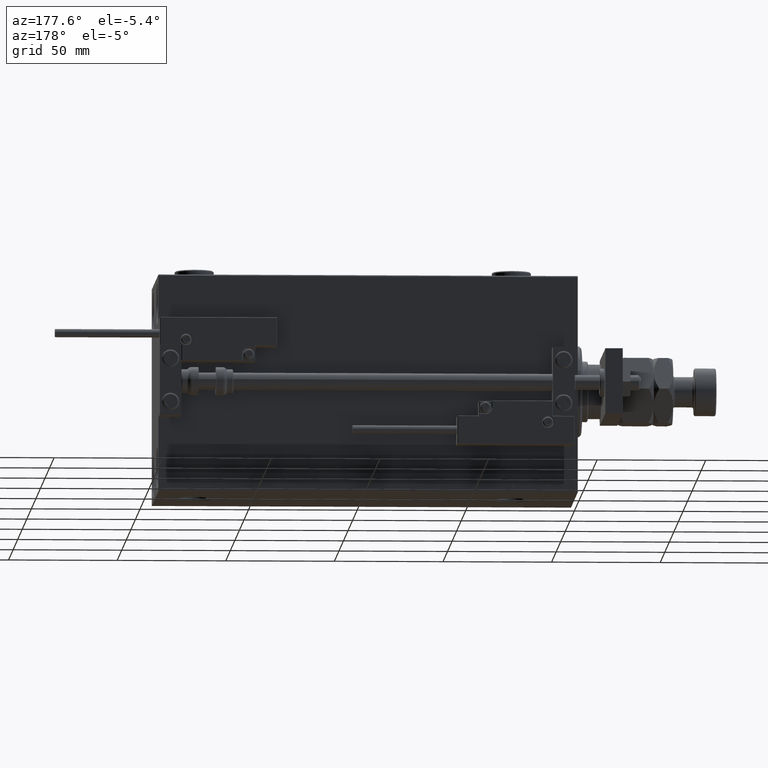
[diagram: clean part render]
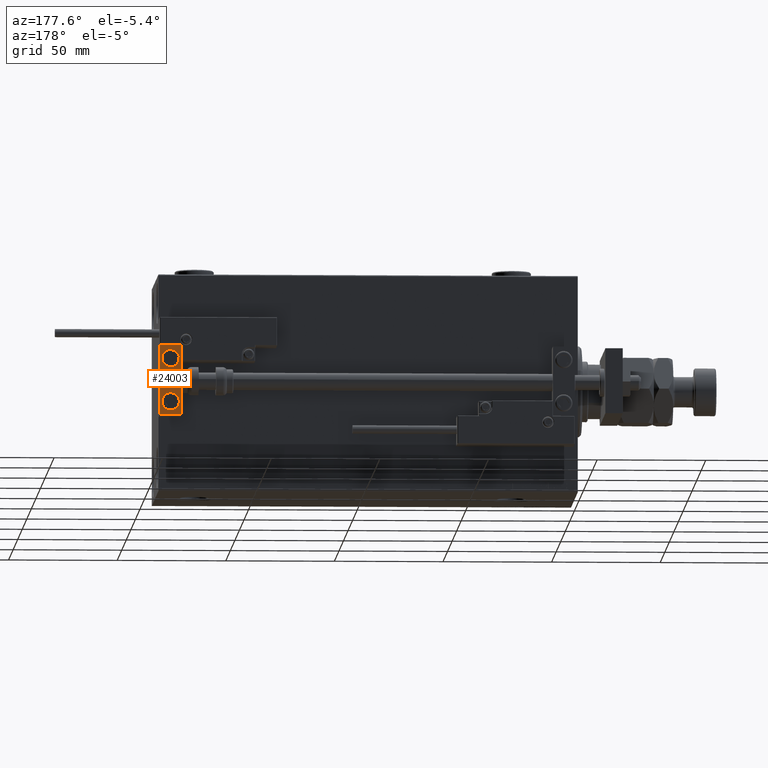
[diagram: same view with one face highlighted and labeled with its STEP entity id]
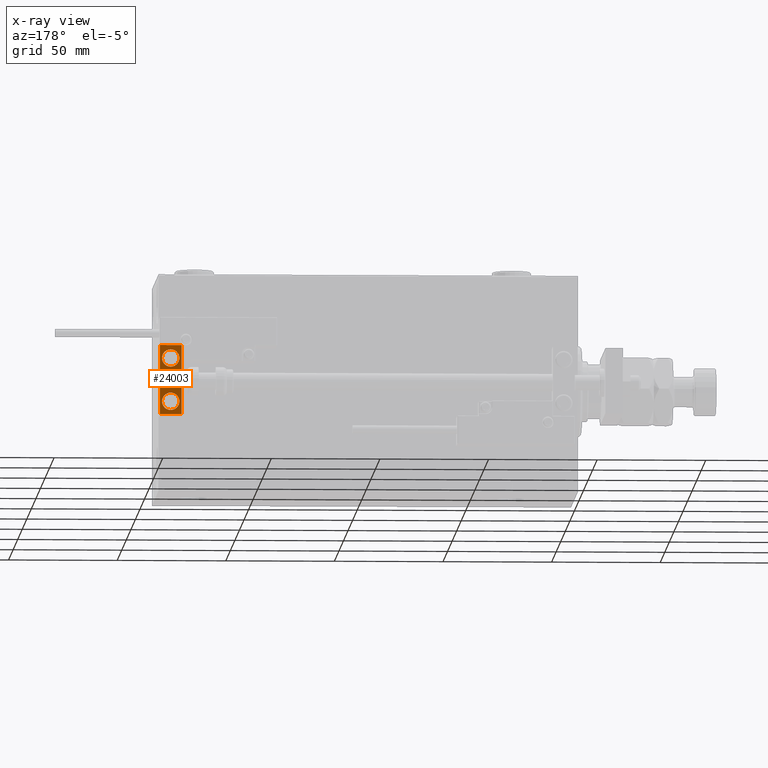
[diagram: x-ray of the same camera — body ghosted, the highlighted face saturated]
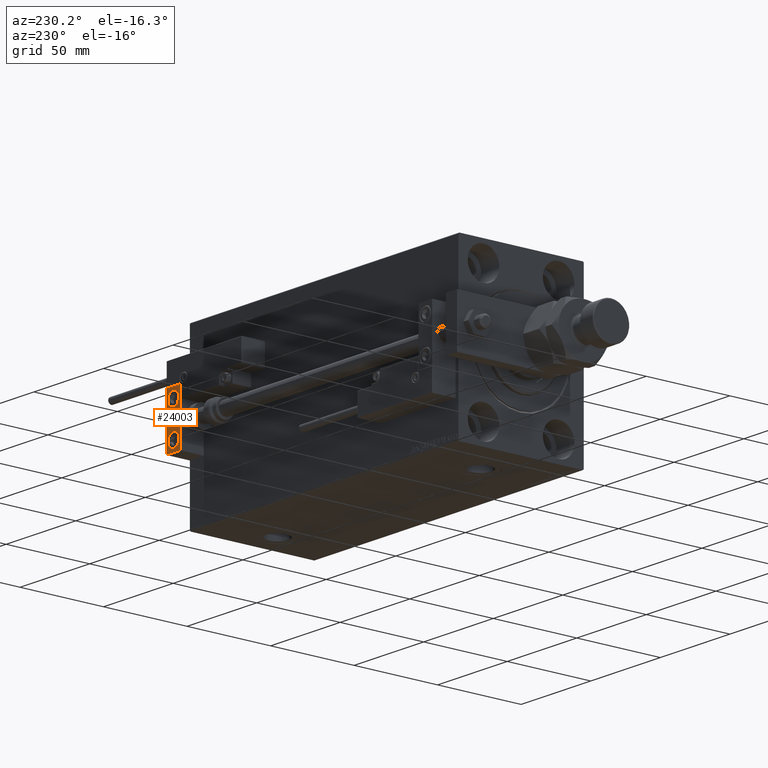
[diagram: same view with one face highlighted and labeled with its STEP entity id]
A machine part, auxiliary view. The second image highlights one B-rep face of the part: STEP entity #24003.
The next image is the same camera in x-ray: the body ghosted, the highlighted face saturated — about 0% of this face is hidden behind the body in this view.
A second angle (auxiliary view) of the same face is appended — the face is thin or edge-on in the first view.
In plain terms, the highlighted planar face has unit normal (0, 1, 0).
Its self-contained STEP definition (entity closure, byte-faithful):
#610 = EDGE_CURVE ( 'NONE', #26797, #2881, #6156, .T. ) ;
#1922 = DIRECTION ( 'NONE',  ( -1.000000000000000000, -0.000000000000000000, -0.000000000000000000 ) ) ;
#2881 = VERTEX_POINT ( 'NONE', #44803 ) ;
#3437 = DIRECTION ( 'NONE',  ( 0.000000000000000000, 0.000000000000000000, 1.000000000000000000 ) ) ;
#3755 = FACE_OUTER_BOUND ( 'NONE', #35858, .T. ) ;
#4127 = DIRECTION ( 'NONE',  ( 1.848892746611746419E-32, -1.000000000000000000, 6.616381192988677562E-17 ) ) ;
#4406 = ORIENTED_EDGE ( 'NONE', *, *, #28695, .T. ) ;
#4656 = VERTEX_POINT ( 'NONE', #10551 ) ;
#6156 = CIRCLE ( 'NONE', #19944, 4.000000000000000000 ) ;
#6496 = EDGE_CURVE ( 'NONE', #9558, #30006, #6757, .T. ) ;
#6757 = LINE ( 'NONE', #10794, #28837 ) ;
#6854 = DIRECTION ( 'NONE',  ( 0.000000000000000000, 1.000000000000000000, -6.065466699219605527E-17 ) ) ;
#8513 = EDGE_CURVE ( 'NONE', #4656, #30006, #35210, .T. ) ;
#8686 = AXIS2_PLACEMENT_3D ( 'NONE', #44632, #6854, #52984 ) ;
#9148 = EDGE_CURVE ( 'NONE', #26420, #39903, #20288, .T. ) ;
#9386 = VECTOR ( 'NONE', #49582, 1000.000000000000000 ) ;
#9558 = VERTEX_POINT ( 'NONE', #48913 ) ;
#10016 = CARTESIAN_POINT ( 'NONE',  ( 5.000000000000000888, 6.999999999999999112, -6.000000000000000888 ) ) ;
#10551 = CARTESIAN_POINT ( 'NONE',  ( 0.000000000000000000, 7.000000000000000000, 15.99999999999999289 ) ) ;
#10794 = CARTESIAN_POINT ( 'NONE',  ( 10.00000000000000000, 7.000000000000000000, -16.00000000000000711 ) ) ;
#14284 = ORIENTED_EDGE ( 'NONE', *, *, #9148, .F. ) ;
#14546 = ORIENTED_EDGE ( 'NONE', *, *, #8513, .F. ) ;
#14709 = DIRECTION ( 'NONE',  ( 0.000000000000000000, 0.000000000000000000, -1.000000000000000000 ) ) ;
#16144 = FACE_BOUND ( 'NONE', #39913, .T. ) ;
#16395 = PLANE ( 'NONE',  #44010 ) ;
#16601 = ORIENTED_EDGE ( 'NONE', *, *, #30373, .T. ) ;
#17058 = EDGE_CURVE ( 'NONE', #36544, #4656, #52568, .T. ) ;
#17695 = AXIS2_PLACEMENT_3D ( 'NONE', #39942, #20154, #36623 ) ;
#17888 = CARTESIAN_POINT ( 'NONE',  ( 10.00000000000000000, 7.000000000000000000, 15.99999999999999289 ) ) ;
#19912 = DIRECTION ( 'NONE',  ( -0.000000000000000000, 1.000000000000000000, 0.000000000000000000 ) ) ;
#19944 = AXIS2_PLACEMENT_3D ( 'NONE', #23910, #40392, #3437 ) ;
#20154 = DIRECTION ( 'NONE',  ( 0.000000000000000000, 1.000000000000000000, -6.065466699219605527E-17 ) ) ;
#20288 = CIRCLE ( 'NONE', #17695, 4.000000000000000888 ) ;
#23910 = CARTESIAN_POINT ( 'NONE',  ( 5.000000000000000888, 7.000000000000000888, 10.00000000000000178 ) ) ;
#24003 = ADVANCED_FACE ( 'NONE', ( #3755, #16144, #49588 ), #16395, .T. ) ;
#24056 = LINE ( 'NONE', #36208, #39041 ) ;
#24303 = EDGE_CURVE ( 'NONE', #39903, #26420, #25031, .T. ) ;
#24338 = CARTESIAN_POINT ( 'NONE',  ( 5.000000000000000888, 7.000000000000000888, 10.00000000000000178 ) ) ;
#25000 = DIRECTION ( 'NONE',  ( 0.000000000000000000, -0.000000000000000000, 1.000000000000000000 ) ) ;
#25031 = CIRCLE ( 'NONE', #8686, 4.000000000000000888 ) ;
#26420 = VERTEX_POINT ( 'NONE', #10016 ) ;
#26797 = VERTEX_POINT ( 'NONE', #30708 ) ;
#27840 = DIRECTION ( 'NONE',  ( 0.000000000000000000, 0.000000000000000000, -1.000000000000000000 ) ) ;
#28001 = CARTESIAN_POINT ( 'NONE',  ( 10.00000000000000000, 7.000000000000000000, 15.99999999999999289 ) ) ;
#28695 = EDGE_CURVE ( 'NONE', #36544, #9558, #24056, .T. ) ;
#28837 = VECTOR ( 'NONE', #1922, 1000.000000000000000 ) ;
#30006 = VERTEX_POINT ( 'NONE', #39947 ) ;
#30373 = EDGE_CURVE ( 'NONE', #2881, #26797, #36502, .T. ) ;
#30708 = CARTESIAN_POINT ( 'NONE',  ( 5.000000000000000888, 7.000000000000000888, 14.00000000000000178 ) ) ;
#31888 = DIRECTION ( 'NONE',  ( 0.000000000000000000, 0.000000000000000000, 1.000000000000000000 ) ) ;
#32952 = CARTESIAN_POINT ( 'NONE',  ( 5.000000000000001776, 6.999999999999999112, -14.00000000000000178 ) ) ;
#35210 = LINE ( 'NONE', #51676, #43559 ) ;
#35858 = EDGE_LOOP ( 'NONE', ( #14546, #51233, #4406, #46131 ) ) ;
#36208 = CARTESIAN_POINT ( 'NONE',  ( 10.00000000000000000, 7.000000000000000000, 15.99999999999999289 ) ) ;
#36502 = CIRCLE ( 'NONE', #43393, 4.000000000000000000 ) ;
#36511 = ORIENTED_EDGE ( 'NONE', *, *, #24303, .F. ) ;
#36544 = VERTEX_POINT ( 'NONE', #17888 ) ;
#36623 = DIRECTION ( 'NONE',  ( 0.000000000000000000, 0.000000000000000000, 1.000000000000000000 ) ) ;
#36655 = ORIENTED_EDGE ( 'NONE', *, *, #610, .T. ) ;
#39041 = VECTOR ( 'NONE', #27840, 1000.000000000000000 ) ;
#39903 = VERTEX_POINT ( 'NONE', #32952 ) ;
#39913 = EDGE_LOOP ( 'NONE', ( #14284, #36511 ) ) ;
#39942 = CARTESIAN_POINT ( 'NONE',  ( 5.000000000000000888, 6.999999999999999112, -10.00000000000000178 ) ) ;
#39947 = CARTESIAN_POINT ( 'NONE',  ( 0.000000000000000000, 7.000000000000000000, -16.00000000000000711 ) ) ;
#40392 = DIRECTION ( 'NONE',  ( 1.848892746611746419E-32, -1.000000000000000000, 6.616381192988677562E-17 ) ) ;
#43393 = AXIS2_PLACEMENT_3D ( 'NONE', #24338, #4127, #31888 ) ;
#43559 = VECTOR ( 'NONE', #14709, 1000.000000000000000 ) ;
#44010 = AXIS2_PLACEMENT_3D ( 'NONE', #49323, #19912, #25000 ) ;
#44632 = CARTESIAN_POINT ( 'NONE',  ( 5.000000000000000888, 6.999999999999999112, -10.00000000000000178 ) ) ;
#44803 = CARTESIAN_POINT ( 'NONE',  ( 5.000000000000001776, 7.000000000000000888, 6.000000000000000888 ) ) ;
#46131 = ORIENTED_EDGE ( 'NONE', *, *, #6496, .T. ) ;
#48390 = EDGE_LOOP ( 'NONE', ( #36655, #16601 ) ) ;
#48913 = CARTESIAN_POINT ( 'NONE',  ( 10.00000000000000000, 7.000000000000000000, -16.00000000000000711 ) ) ;
#49323 = CARTESIAN_POINT ( 'NONE',  ( 10.00000000000000000, 7.000000000000000000, 15.99999999999999289 ) ) ;
#49582 = DIRECTION ( 'NONE',  ( -1.000000000000000000, -0.000000000000000000, -0.000000000000000000 ) ) ;
#49588 = FACE_BOUND ( 'NONE', #48390, .T. ) ;
#51233 = ORIENTED_EDGE ( 'NONE', *, *, #17058, .F. ) ;
#51676 = CARTESIAN_POINT ( 'NONE',  ( 0.000000000000000000, 7.000000000000000000, 15.99999999999999289 ) ) ;
#52568 = LINE ( 'NONE', #28001, #9386 ) ;
#52984 = DIRECTION ( 'NONE',  ( 0.000000000000000000, 0.000000000000000000, 1.000000000000000000 ) ) ;